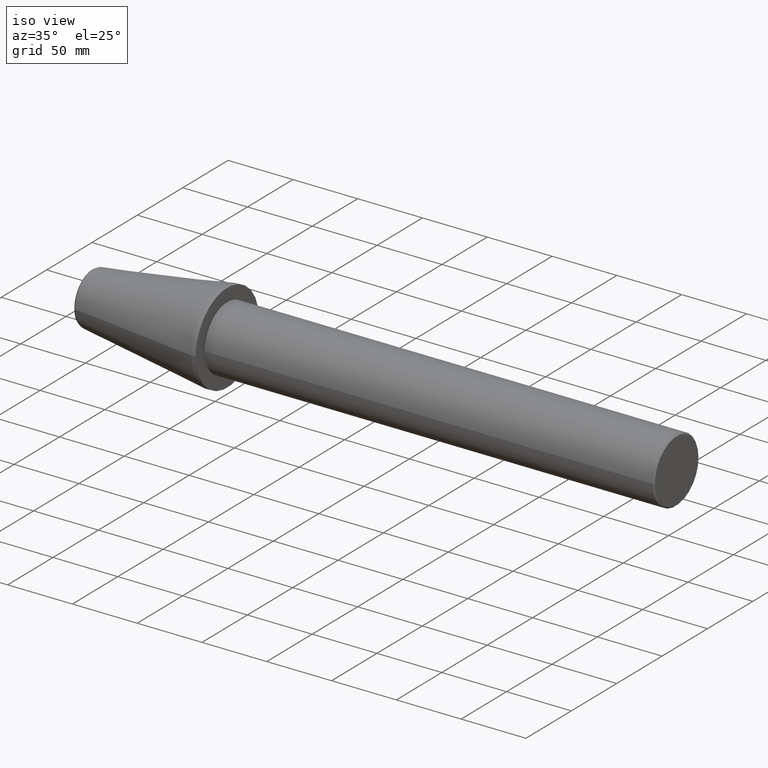
[diagram: clean part render]
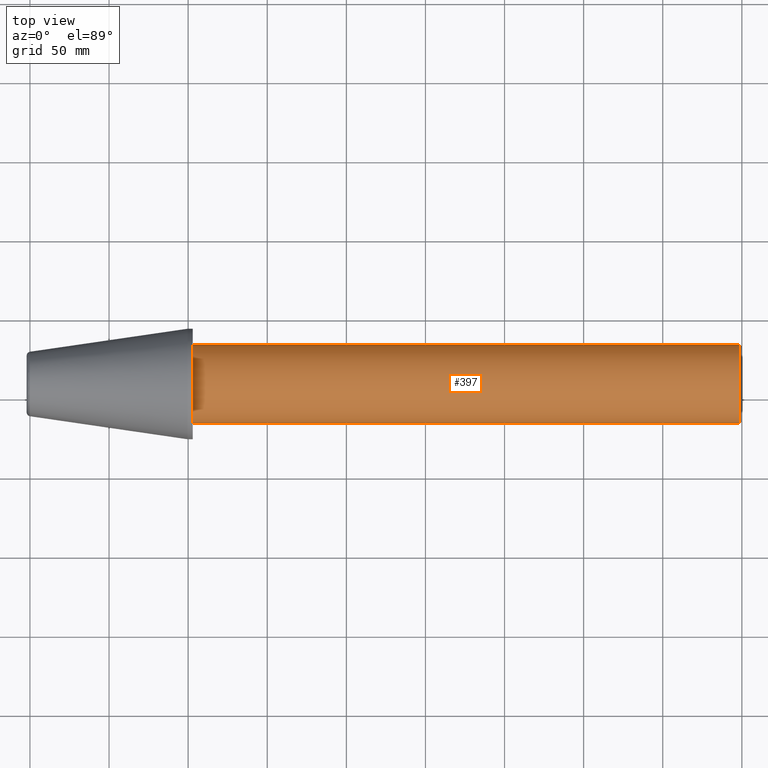
[diagram: tour spotlight — one face highlighted and labeled with its STEP entity id]
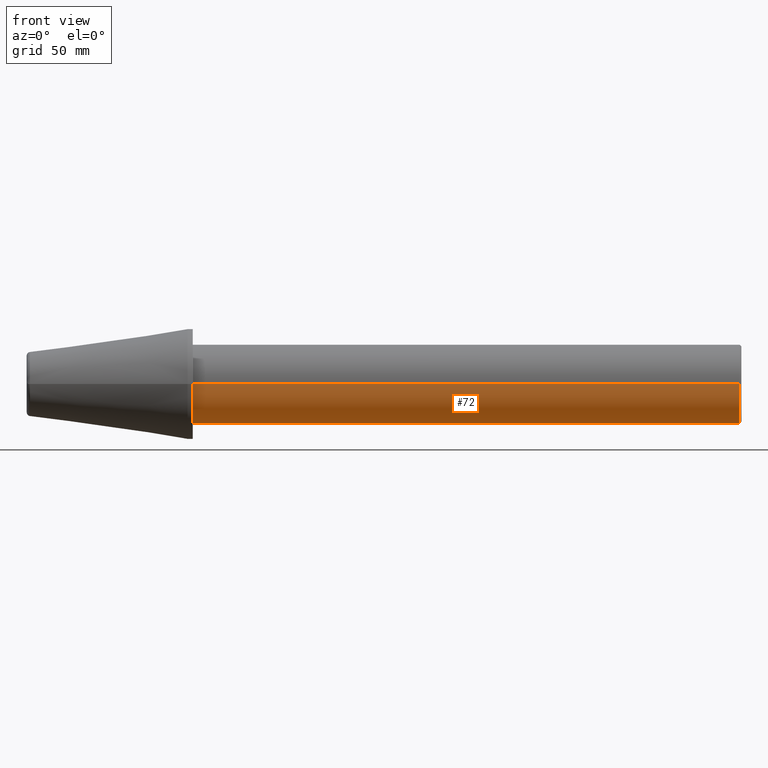
[diagram: tour spotlight — one face highlighted and labeled with its STEP entity id]
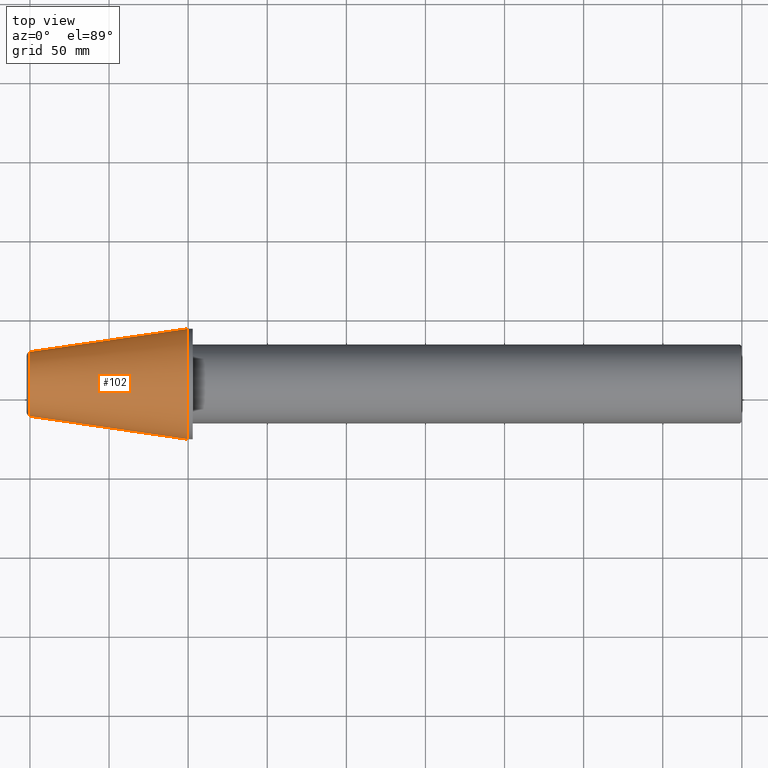
[diagram: tour spotlight — one face highlighted and labeled with its STEP entity id]
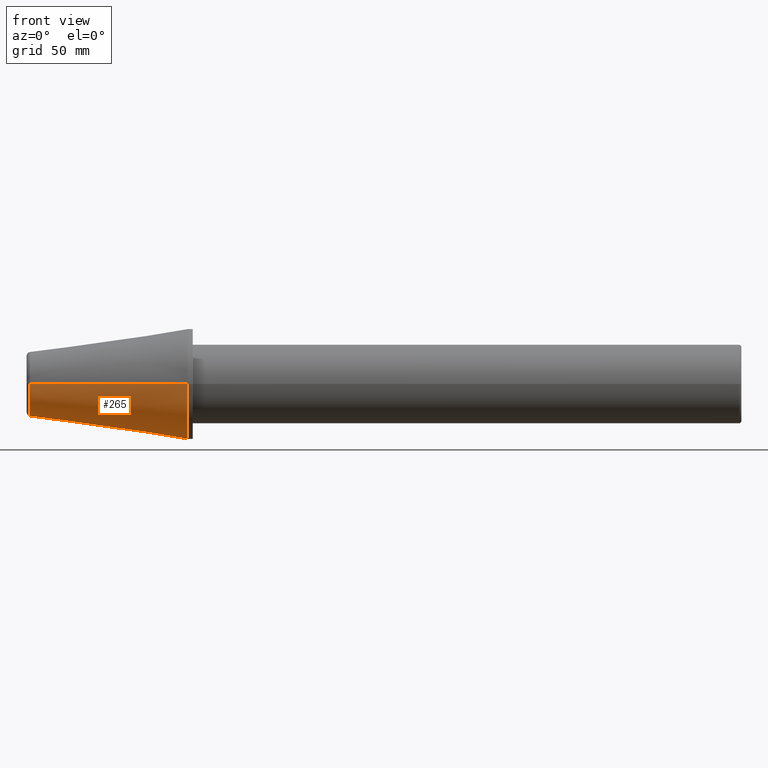
[diagram: tour spotlight — one face highlighted and labeled with its STEP entity id]
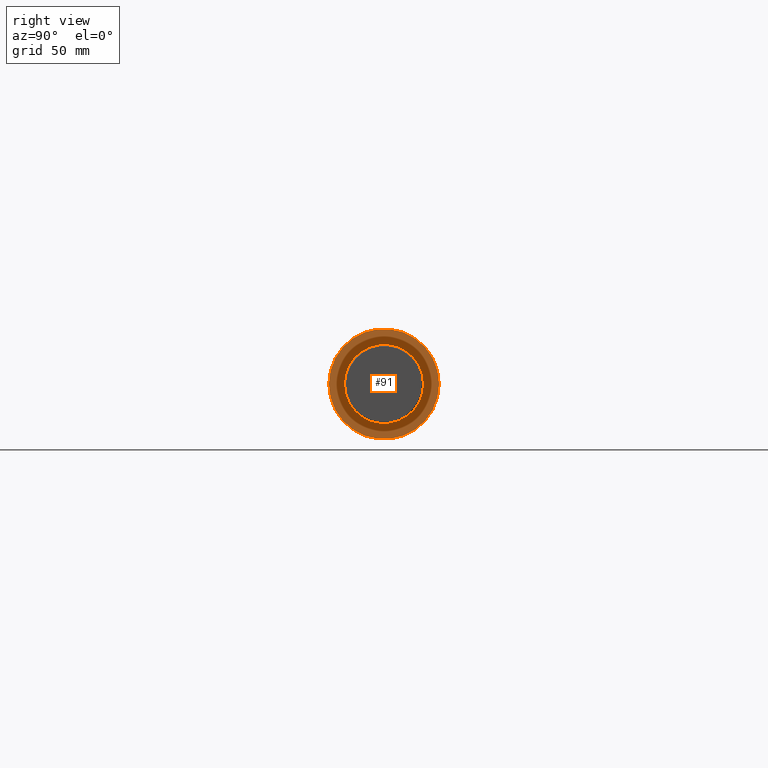
[diagram: tour spotlight — one face highlighted and labeled with its STEP entity id]
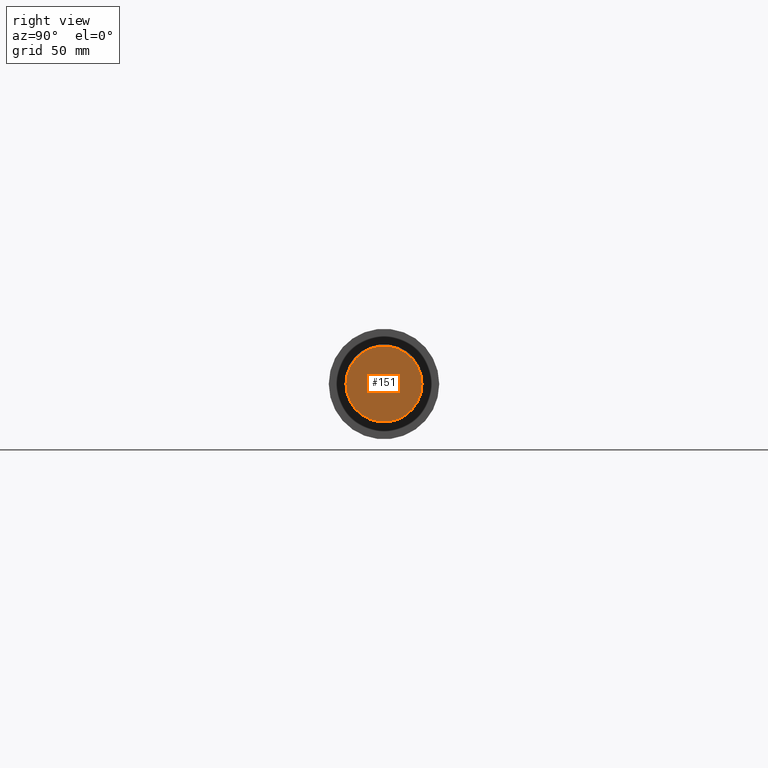
[diagram: tour spotlight — one face highlighted and labeled with its STEP entity id]
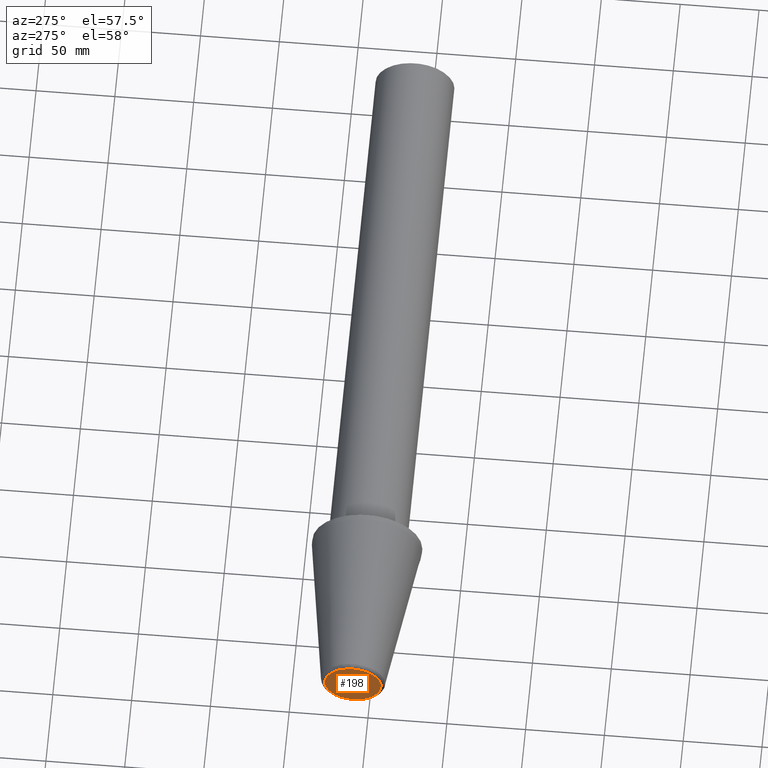
[diagram: tour spotlight — one face highlighted and labeled with its STEP entity id]
A machine part: a face-by-face anatomy tour. The part has 13 B-rep faces; the first image is the clean iso view, then the 7 largest visible faces are spotlighted one at a time (largest first), each with its STEP entity span.

Face 1 — top view, entity #397. In plain terms, the highlighted cylindrical surface (partial cylindrical patch) has radius 25 mm, axis along (-1, -0, -0).
Definition (entity closure, byte-faithful):
#26 = DIRECTION ( 'NONE',  ( 8.881784197001836100E-015, -1.000000000000000000, 0.0000000000000000000 ) ) ;
#27 = DIRECTION ( 'NONE',  ( 1.000000000000000000, 7.864335758274511400E-015, 0.0000000000000000000 ) ) ;
#28 = CARTESIAN_POINT ( 'NONE',  ( 1802.875038306884600, 1609.423944982286500, 0.0000000000000000000 ) ) ;
#36 = CIRCLE ( 'NONE', #68, 24.99999999999835900 ) ;
#37 = DIRECTION ( 'NONE',  ( 8.881784197001836100E-015, -1.000000000000000000, 0.0000000000000000000 ) ) ;
#47 = VERTEX_POINT ( 'NONE', #59 ) ;
#59 = CARTESIAN_POINT ( 'NONE',  ( 2148.675038306883800, 1584.423944982292600, 0.0000000000000000000 ) ) ;
#68 = AXIS2_PLACEMENT_3D ( 'NONE', #313, #342, #224 ) ;
#71 = CARTESIAN_POINT ( 'NONE',  ( 1802.875038306884300, 1634.423944982284900, 3.061616997868183100E-015 ) ) ;
#77 = DIRECTION ( 'NONE',  ( -1.000000000000000000, -7.864335758274511400E-015, -0.0000000000000000000 ) ) ;
#86 = EDGE_CURVE ( 'NONE', #272, #247, #400, .T. ) ;
#88 = VECTOR ( 'NONE', #183, 1000.000000000000000 ) ;
#101 = EDGE_CURVE ( 'NONE', #47, #149, #36, .T. ) ;
#108 = LINE ( 'NONE', #217, #186 ) ;
#116 = FACE_OUTER_BOUND ( 'NONE', #200, .T. ) ;
#117 = LINE ( 'NONE', #194, #88 ) ;
#121 = AXIS2_PLACEMENT_3D ( 'NONE', #286, #382, #37 ) ;
#123 = CYLINDRICAL_SURFACE ( 'NONE', #121, 24.99999999999835900 ) ;
#139 = ORIENTED_EDGE ( 'NONE', *, *, #270, .T. ) ;
#149 = VERTEX_POINT ( 'NONE', #258 ) ;
#173 = ORIENTED_EDGE ( 'NONE', *, *, #101, .T. ) ;
#183 = DIRECTION ( 'NONE',  ( -1.000000000000000000, -7.864335758274511400E-015, -0.0000000000000000000 ) ) ;
#186 = VECTOR ( 'NONE', #77, 1000.000000000000000 ) ;
#194 = CARTESIAN_POINT ( 'NONE',  ( 1697.925038306884300, 1634.423944982284000, 3.061616997868182300E-015 ) ) ;
#200 = EDGE_LOOP ( 'NONE', ( #173, #139, #244, #399 ) ) ;
#217 = CARTESIAN_POINT ( 'NONE',  ( 1697.925038306884700, 1584.423944982287100, 0.0000000000000000000 ) ) ;
#224 = DIRECTION ( 'NONE',  ( 0.0000000000000000000, -1.000000000000000000, 0.0000000000000000000 ) ) ;
#244 = ORIENTED_EDGE ( 'NONE', *, *, #86, .T. ) ;
#245 = AXIS2_PLACEMENT_3D ( 'NONE', #28, #27, #26 ) ;
#247 = VERTEX_POINT ( 'NONE', #343 ) ;
#258 = CARTESIAN_POINT ( 'NONE',  ( 2148.675038306883800, 1634.423944982285300, 3.061616997867906600E-015 ) ) ;
#270 = EDGE_CURVE ( 'NONE', #149, #272, #117, .T. ) ;
#272 = VERTEX_POINT ( 'NONE', #71 ) ;
#276 = EDGE_CURVE ( 'NONE', #47, #247, #108, .T. ) ;
#286 = CARTESIAN_POINT ( 'NONE',  ( 1697.925038306884500, 1609.423944982285500, 0.0000000000000000000 ) ) ;
#313 = CARTESIAN_POINT ( 'NONE',  ( 2148.675038306883800, 1609.423944982289200, 0.0000000000000000000 ) ) ;
#342 = DIRECTION ( 'NONE',  ( -1.000000000000000000, -7.864335758274511400E-015, -0.0000000000000000000 ) ) ;
#343 = CARTESIAN_POINT ( 'NONE',  ( 1802.875038306884800, 1584.423944982288000, 0.0000000000000000000 ) ) ;
#382 = DIRECTION ( 'NONE',  ( -1.000000000000000000, -7.864335758274511400E-015, -0.0000000000000000000 ) ) ;
#397 = ADVANCED_FACE ( 'NONE', ( #116 ), #123, .T. ) ;
#399 = ORIENTED_EDGE ( 'NONE', *, *, #276, .F. ) ;
#400 = CIRCLE ( 'NONE', #245, 24.99999999999835900 ) ;

Face 2 — front view, entity #72. In plain terms, the highlighted cylindrical surface (partial cylindrical patch) has radius 25 mm, axis along (-1, -0, -0).
Definition (entity closure, byte-faithful):
#47 = VERTEX_POINT ( 'NONE', #59 ) ;
#50 = CIRCLE ( 'NONE', #235, 24.99999999999835900 ) ;
#52 = DIRECTION ( 'NONE',  ( 8.881784197001836100E-015, -1.000000000000000000, 0.0000000000000000000 ) ) ;
#59 = CARTESIAN_POINT ( 'NONE',  ( 2148.675038306883800, 1584.423944982292600, 0.0000000000000000000 ) ) ;
#61 = CARTESIAN_POINT ( 'NONE',  ( 1697.925038306884500, 1609.423944982285500, 0.0000000000000000000 ) ) ;
#66 = DIRECTION ( 'NONE',  ( -1.000000000000000000, -7.864335758274511400E-015, -0.0000000000000000000 ) ) ;
#71 = CARTESIAN_POINT ( 'NONE',  ( 1802.875038306884300, 1634.423944982284900, 3.061616997868183100E-015 ) ) ;
#72 = ADVANCED_FACE ( 'NONE', ( #89 ), #395, .T. ) ;
#77 = DIRECTION ( 'NONE',  ( -1.000000000000000000, -7.864335758274511400E-015, -0.0000000000000000000 ) ) ;
#81 = ORIENTED_EDGE ( 'NONE', *, *, #290, .T. ) ;
#88 = VECTOR ( 'NONE', #183, 1000.000000000000000 ) ;
#89 = FACE_OUTER_BOUND ( 'NONE', #141, .T. ) ;
#108 = LINE ( 'NONE', #217, #186 ) ;
#117 = LINE ( 'NONE', #194, #88 ) ;
#130 = AXIS2_PLACEMENT_3D ( 'NONE', #378, #229, #339 ) ;
#141 = EDGE_LOOP ( 'NONE', ( #143, #81, #243, #280 ) ) ;
#143 = ORIENTED_EDGE ( 'NONE', *, *, #270, .F. ) ;
#149 = VERTEX_POINT ( 'NONE', #258 ) ;
#183 = DIRECTION ( 'NONE',  ( -1.000000000000000000, -7.864335758274511400E-015, -0.0000000000000000000 ) ) ;
#186 = VECTOR ( 'NONE', #77, 1000.000000000000000 ) ;
#194 = CARTESIAN_POINT ( 'NONE',  ( 1697.925038306884300, 1634.423944982284000, 3.061616997868182300E-015 ) ) ;
#217 = CARTESIAN_POINT ( 'NONE',  ( 1697.925038306884700, 1584.423944982287100, 0.0000000000000000000 ) ) ;
#229 = DIRECTION ( 'NONE',  ( 1.000000000000000000, 7.864335758274511400E-015, 0.0000000000000000000 ) ) ;
#235 = AXIS2_PLACEMENT_3D ( 'NONE', #344, #352, #362 ) ;
#239 = AXIS2_PLACEMENT_3D ( 'NONE', #61, #66, #52 ) ;
#243 = ORIENTED_EDGE ( 'NONE', *, *, #276, .T. ) ;
#247 = VERTEX_POINT ( 'NONE', #343 ) ;
#252 = CIRCLE ( 'NONE', #130, 24.99999999999835900 ) ;
#258 = CARTESIAN_POINT ( 'NONE',  ( 2148.675038306883800, 1634.423944982285300, 3.061616997867906600E-015 ) ) ;
#270 = EDGE_CURVE ( 'NONE', #149, #272, #117, .T. ) ;
#272 = VERTEX_POINT ( 'NONE', #71 ) ;
#276 = EDGE_CURVE ( 'NONE', #47, #247, #108, .T. ) ;
#280 = ORIENTED_EDGE ( 'NONE', *, *, #301, .T. ) ;
#290 = EDGE_CURVE ( 'NONE', #149, #47, #50, .T. ) ;
#301 = EDGE_CURVE ( 'NONE', #247, #272, #252, .T. ) ;
#339 = DIRECTION ( 'NONE',  ( 8.881784197001836100E-015, -1.000000000000000000, 0.0000000000000000000 ) ) ;
#343 = CARTESIAN_POINT ( 'NONE',  ( 1802.875038306884800, 1584.423944982288000, 0.0000000000000000000 ) ) ;
#344 = CARTESIAN_POINT ( 'NONE',  ( 2148.675038306883800, 1609.423944982289200, 0.0000000000000000000 ) ) ;
#352 = DIRECTION ( 'NONE',  ( -1.000000000000000000, -7.864335758274511400E-015, -0.0000000000000000000 ) ) ;
#362 = DIRECTION ( 'NONE',  ( 0.0000000000000000000, -1.000000000000000000, 0.0000000000000000000 ) ) ;
#378 = CARTESIAN_POINT ( 'NONE',  ( 1802.875038306884600, 1609.423944982286500, 0.0000000000000000000 ) ) ;
#395 = CYLINDRICAL_SURFACE ( 'NONE', #239, 24.99999999999835900 ) ;

Face 3 — top view, entity #102. In plain terms, the highlighted conical surface has half-angle 8.297 deg.
Definition (entity closure, byte-faithful):
#3 = DIRECTION ( 'NONE',  ( 1.000000000000000000, 6.357755330709176700E-015, 3.178877665354588400E-015 ) ) ;
#7 = ORIENTED_EDGE ( 'NONE', *, *, #90, .T. ) ;
#13 = AXIS2_PLACEMENT_3D ( 'NONE', #25, #3, #14 ) ;
#14 = DIRECTION ( 'NONE',  ( -6.357755330709217000E-015, 1.000000000000000000, 0.0000000000000000000 ) ) ;
#25 = CARTESIAN_POINT ( 'NONE',  ( 1799.675038306884500, 1609.423944982286700, -4.466826931958537700E-042 ) ) ;
#29 = CARTESIAN_POINT ( 'NONE',  ( 1799.675038306884700, 1574.498944982284900, 4.277078946022360400E-015 ) ) ;
#30 = DIRECTION ( 'NONE',  ( 1.000000000000000000, 7.864335758274511400E-015, 0.0000000000000000000 ) ) ;
#39 = DIRECTION ( 'NONE',  ( 0.9895327870518778600, -0.1443082234293763500, 3.163276336286633200E-015 ) ) ;
#49 = CARTESIAN_POINT ( 'NONE',  ( 1700.064267748310600, 1629.822237507979700, 0.0000000000000000000 ) ) ;
#79 = VECTOR ( 'NONE', #39, 1000.000000000000200 ) ;
#80 = AXIS2_PLACEMENT_3D ( 'NONE', #365, #30, #370 ) ;
#83 = VERTEX_POINT ( 'NONE', #49 ) ;
#90 = EDGE_CURVE ( 'NONE', #405, #329, #373, .T. ) ;
#102 = ADVANCED_FACE ( 'NONE', ( #160 ), #135, .T. ) ;
#105 = ORIENTED_EDGE ( 'NONE', *, *, #307, .F. ) ;
#119 = VERTEX_POINT ( 'NONE', #411 ) ;
#135 = CONICAL_SURFACE ( 'NONE', #13, 34.92500000000187300, 0.1448138426688974100 ) ;
#152 = ORIENTED_EDGE ( 'NONE', *, *, #296, .T. ) ;
#160 = FACE_OUTER_BOUND ( 'NONE', #168, .T. ) ;
#161 = AXIS2_PLACEMENT_3D ( 'NONE', #316, #318, #319 ) ;
#168 = EDGE_LOOP ( 'NONE', ( #152, #7, #241, #105 ) ) ;
#219 = CIRCLE ( 'NONE', #161, 34.92500000000209300 ) ;
#241 = ORIENTED_EDGE ( 'NONE', *, *, #284, .F. ) ;
#284 = EDGE_CURVE ( 'NONE', #119, #329, #219, .T. ) ;
#291 = DIRECTION ( 'NONE',  ( 0.9895327870518760800, 0.1443082234293889800, 3.145603675895289900E-015 ) ) ;
#293 = VECTOR ( 'NONE', #291, 1000.000000000000000 ) ;
#296 = EDGE_CURVE ( 'NONE', #83, #405, #308, .T. ) ;
#307 = EDGE_CURVE ( 'NONE', #83, #119, #429, .T. ) ;
#308 = CIRCLE ( 'NONE', #80, 20.39829252569380500 ) ;
#316 = CARTESIAN_POINT ( 'NONE',  ( 1799.675038306884500, 1609.423944982286500, 0.0000000000000000000 ) ) ;
#318 = DIRECTION ( 'NONE',  ( 1.000000000000000000, 7.864335758274511400E-015, 0.0000000000000000000 ) ) ;
#319 = DIRECTION ( 'NONE',  ( 6.357755330709176700E-015, -1.000000000000000000, 0.0000000000000000000 ) ) ;
#329 = VERTEX_POINT ( 'NONE', #371 ) ;
#365 = CARTESIAN_POINT ( 'NONE',  ( 1700.064267748310800, 1609.423944982285800, 0.0000000000000000000 ) ) ;
#370 = DIRECTION ( 'NONE',  ( -1.088545056628355800E-014, 1.000000000000000000, 0.0000000000000000000 ) ) ;
#371 = CARTESIAN_POINT ( 'NONE',  ( 1799.675038306884700, 1574.498944982284900, 4.277078946022527700E-015 ) ) ;
#373 = LINE ( 'NONE', #29, #79 ) ;
#375 = CARTESIAN_POINT ( 'NONE',  ( 1799.675038306884300, 1644.348944982288500, -4.466826931958537700E-042 ) ) ;
#404 = CARTESIAN_POINT ( 'NONE',  ( 1700.064267748311100, 1589.025652456592100, -1.549376522232125600E-013 ) ) ;
#405 = VERTEX_POINT ( 'NONE', #404 ) ;
#411 = CARTESIAN_POINT ( 'NONE',  ( 1799.675038306884300, 1644.348944982288500, -1.672640279132691700E-028 ) ) ;
#429 = LINE ( 'NONE', #375, #293 ) ;

Face 4 — front view, entity #265. In plain terms, the highlighted conical surface has half-angle 8.297 deg.
Definition (entity closure, byte-faithful):
#4 = DIRECTION ( 'NONE',  ( 6.357755330709176700E-015, -1.000000000000000000, 0.0000000000000000000 ) ) ;
#8 = DIRECTION ( 'NONE',  ( 1.000000000000000000, 7.864335758274511400E-015, 0.0000000000000000000 ) ) ;
#11 = CARTESIAN_POINT ( 'NONE',  ( 1799.675038306884500, 1609.423944982286500, 0.0000000000000000000 ) ) ;
#15 = DIRECTION ( 'NONE',  ( -1.088545056628355800E-014, 1.000000000000000000, 0.0000000000000000000 ) ) ;
#29 = CARTESIAN_POINT ( 'NONE',  ( 1799.675038306884700, 1574.498944982284900, 4.277078946022360400E-015 ) ) ;
#39 = DIRECTION ( 'NONE',  ( 0.9895327870518778600, -0.1443082234293763500, 3.163276336286633200E-015 ) ) ;
#49 = CARTESIAN_POINT ( 'NONE',  ( 1700.064267748310600, 1629.822237507979700, 0.0000000000000000000 ) ) ;
#79 = VECTOR ( 'NONE', #39, 1000.000000000000200 ) ;
#83 = VERTEX_POINT ( 'NONE', #49 ) ;
#90 = EDGE_CURVE ( 'NONE', #405, #329, #373, .T. ) ;
#97 = EDGE_CURVE ( 'NONE', #329, #119, #109, .T. ) ;
#109 = CIRCLE ( 'NONE', #228, 34.92500000000209300 ) ;
#112 = EDGE_CURVE ( 'NONE', #405, #83, #221, .T. ) ;
#119 = VERTEX_POINT ( 'NONE', #411 ) ;
#126 = DIRECTION ( 'NONE',  ( 1.000000000000000000, 7.864335758274511400E-015, 0.0000000000000000000 ) ) ;
#129 = EDGE_LOOP ( 'NONE', ( #341, #322, #426, #312 ) ) ;
#171 = AXIS2_PLACEMENT_3D ( 'NONE', #347, #188, #189 ) ;
#175 = FACE_OUTER_BOUND ( 'NONE', #129, .T. ) ;
#188 = DIRECTION ( 'NONE',  ( 1.000000000000000000, 6.357755330709176700E-015, 3.178877665354588400E-015 ) ) ;
#189 = DIRECTION ( 'NONE',  ( -6.357755330709217000E-015, 1.000000000000000000, 0.0000000000000000000 ) ) ;
#193 = CARTESIAN_POINT ( 'NONE',  ( 1700.064267748310800, 1609.423944982285800, 0.0000000000000000000 ) ) ;
#221 = CIRCLE ( 'NONE', #345, 20.39829252569380500 ) ;
#228 = AXIS2_PLACEMENT_3D ( 'NONE', #11, #8, #4 ) ;
#262 = CONICAL_SURFACE ( 'NONE', #171, 34.92500000000187300, 0.1448138426688974100 ) ;
#265 = ADVANCED_FACE ( 'NONE', ( #175 ), #262, .T. ) ;
#291 = DIRECTION ( 'NONE',  ( 0.9895327870518760800, 0.1443082234293889800, 3.145603675895289900E-015 ) ) ;
#293 = VECTOR ( 'NONE', #291, 1000.000000000000000 ) ;
#307 = EDGE_CURVE ( 'NONE', #83, #119, #429, .T. ) ;
#312 = ORIENTED_EDGE ( 'NONE', *, *, #97, .F. ) ;
#322 = ORIENTED_EDGE ( 'NONE', *, *, #112, .T. ) ;
#329 = VERTEX_POINT ( 'NONE', #371 ) ;
#341 = ORIENTED_EDGE ( 'NONE', *, *, #90, .F. ) ;
#345 = AXIS2_PLACEMENT_3D ( 'NONE', #193, #126, #15 ) ;
#347 = CARTESIAN_POINT ( 'NONE',  ( 1799.675038306884500, 1609.423944982286700, -4.466826931958537700E-042 ) ) ;
#371 = CARTESIAN_POINT ( 'NONE',  ( 1799.675038306884700, 1574.498944982284900, 4.277078946022527700E-015 ) ) ;
#373 = LINE ( 'NONE', #29, #79 ) ;
#375 = CARTESIAN_POINT ( 'NONE',  ( 1799.675038306884300, 1644.348944982288500, -4.466826931958537700E-042 ) ) ;
#404 = CARTESIAN_POINT ( 'NONE',  ( 1700.064267748311100, 1589.025652456592100, -1.549376522232125600E-013 ) ) ;
#405 = VERTEX_POINT ( 'NONE', #404 ) ;
#411 = CARTESIAN_POINT ( 'NONE',  ( 1799.675038306884300, 1644.348944982288500, -1.672640279132691700E-028 ) ) ;
#426 = ORIENTED_EDGE ( 'NONE', *, *, #307, .T. ) ;
#429 = LINE ( 'NONE', #375, #293 ) ;

Face 5 — right view, entity #91. In plain terms, the highlighted planar face has unit normal (-1, -0, 0).
Definition (entity closure, byte-faithful):
#9 = FACE_OUTER_BOUND ( 'NONE', #147, .T. ) ;
#19 = DIRECTION ( 'NONE',  ( 7.864335758274511400E-015, -1.000000000000000000, 0.0000000000000000000 ) ) ;
#20 = DIRECTION ( 'NONE',  ( -1.000000000000000000, -7.864335758274511400E-015, 0.0000000000000000000 ) ) ;
#21 = PLANE ( 'NONE',  #223 ) ;
#23 = CIRCLE ( 'NONE', #260, 34.92500000000209300 ) ;
#24 = EDGE_CURVE ( 'NONE', #114, #201, #23, .T. ) ;
#26 = DIRECTION ( 'NONE',  ( 8.881784197001836100E-015, -1.000000000000000000, 0.0000000000000000000 ) ) ;
#27 = DIRECTION ( 'NONE',  ( 1.000000000000000000, 7.864335758274511400E-015, 0.0000000000000000000 ) ) ;
#28 = CARTESIAN_POINT ( 'NONE',  ( 1802.875038306884600, 1609.423944982286500, 0.0000000000000000000 ) ) ;
#31 = DIRECTION ( 'NONE',  ( -1.000000000000000000, -7.864335758274511400E-015, -0.0000000000000000000 ) ) ;
#33 = CARTESIAN_POINT ( 'NONE',  ( 1802.875038306884100, 1644.348944982288500, 0.0000000000000000000 ) ) ;
#64 = CARTESIAN_POINT ( 'NONE',  ( 1802.875038306884600, 1574.498944982284500, 0.0000000000000000000 ) ) ;
#71 = CARTESIAN_POINT ( 'NONE',  ( 1802.875038306884300, 1634.423944982284900, 3.061616997868183100E-015 ) ) ;
#74 = DIRECTION ( 'NONE',  ( 6.357755330709176700E-015, -1.000000000000000000, 0.0000000000000000000 ) ) ;
#86 = EDGE_CURVE ( 'NONE', #272, #247, #400, .T. ) ;
#91 = ADVANCED_FACE ( 'NONE', ( #99, #9 ), #21, .F. ) ;
#93 = ORIENTED_EDGE ( 'NONE', *, *, #86, .F. ) ;
#99 = FACE_BOUND ( 'NONE', #421, .T. ) ;
#114 = VERTEX_POINT ( 'NONE', #64 ) ;
#122 = CARTESIAN_POINT ( 'NONE',  ( 1802.875038306884300, 1609.423944982286500, 0.0000000000000000000 ) ) ;
#130 = AXIS2_PLACEMENT_3D ( 'NONE', #378, #229, #339 ) ;
#144 = ORIENTED_EDGE ( 'NONE', *, *, #301, .F. ) ;
#147 = EDGE_LOOP ( 'NONE', ( #182, #267 ) ) ;
#172 = CIRCLE ( 'NONE', #212, 34.92500000000209300 ) ;
#182 = ORIENTED_EDGE ( 'NONE', *, *, #24, .F. ) ;
#201 = VERTEX_POINT ( 'NONE', #277 ) ;
#212 = AXIS2_PLACEMENT_3D ( 'NONE', #327, #331, #332 ) ;
#223 = AXIS2_PLACEMENT_3D ( 'NONE', #33, #20, #19 ) ;
#229 = DIRECTION ( 'NONE',  ( 1.000000000000000000, 7.864335758274511400E-015, 0.0000000000000000000 ) ) ;
#245 = AXIS2_PLACEMENT_3D ( 'NONE', #28, #27, #26 ) ;
#247 = VERTEX_POINT ( 'NONE', #343 ) ;
#252 = CIRCLE ( 'NONE', #130, 24.99999999999835900 ) ;
#260 = AXIS2_PLACEMENT_3D ( 'NONE', #122, #31, #74 ) ;
#267 = ORIENTED_EDGE ( 'NONE', *, *, #287, .F. ) ;
#272 = VERTEX_POINT ( 'NONE', #71 ) ;
#277 = CARTESIAN_POINT ( 'NONE',  ( 1802.875038306884100, 1644.348944982288500, 4.277078946022387300E-015 ) ) ;
#287 = EDGE_CURVE ( 'NONE', #201, #114, #172, .T. ) ;
#301 = EDGE_CURVE ( 'NONE', #247, #272, #252, .T. ) ;
#327 = CARTESIAN_POINT ( 'NONE',  ( 1802.875038306884300, 1609.423944982286500, 0.0000000000000000000 ) ) ;
#331 = DIRECTION ( 'NONE',  ( -1.000000000000000000, -7.864335758274511400E-015, -0.0000000000000000000 ) ) ;
#332 = DIRECTION ( 'NONE',  ( 6.357755330709176700E-015, -1.000000000000000000, 0.0000000000000000000 ) ) ;
#339 = DIRECTION ( 'NONE',  ( 8.881784197001836100E-015, -1.000000000000000000, 0.0000000000000000000 ) ) ;
#343 = CARTESIAN_POINT ( 'NONE',  ( 1802.875038306884800, 1584.423944982288000, 0.0000000000000000000 ) ) ;
#378 = CARTESIAN_POINT ( 'NONE',  ( 1802.875038306884600, 1609.423944982286500, 0.0000000000000000000 ) ) ;
#400 = CIRCLE ( 'NONE', #245, 24.99999999999835900 ) ;
#421 = EDGE_LOOP ( 'NONE', ( #144, #93 ) ) ;

Face 6 — right view, entity #151. In plain terms, the highlighted planar face has unit normal (-1, -0, 0).
Definition (entity closure, byte-faithful):
#2 = ORIENTED_EDGE ( 'NONE', *, *, #336, .F. ) ;
#60 = AXIS2_PLACEMENT_3D ( 'NONE', #340, #346, #266 ) ;
#100 = DIRECTION ( 'NONE',  ( 1.850371707708883500E-014, -1.000000000000000000, 0.0000000000000000000 ) ) ;
#115 = EDGE_CURVE ( 'NONE', #372, #325, #380, .T. ) ;
#151 = ADVANCED_FACE ( 'NONE', ( #415 ), #215, .F. ) ;
#177 = AXIS2_PLACEMENT_3D ( 'NONE', #401, #256, #225 ) ;
#185 = CIRCLE ( 'NONE', #60, 23.99999999999624800 ) ;
#208 = AXIS2_PLACEMENT_3D ( 'NONE', #264, #314, #100 ) ;
#214 = EDGE_LOOP ( 'NONE', ( #2, #294 ) ) ;
#215 = PLANE ( 'NONE',  #177 ) ;
#225 = DIRECTION ( 'NONE',  ( 7.864335758274511400E-015, -1.000000000000000000, 0.0000000000000000000 ) ) ;
#256 = DIRECTION ( 'NONE',  ( -1.000000000000000000, -7.864335758274511400E-015, 0.0000000000000000000 ) ) ;
#264 = CARTESIAN_POINT ( 'NONE',  ( 2149.675038306884300, 1609.423944982289200, 0.0000000000000000000 ) ) ;
#266 = DIRECTION ( 'NONE',  ( 1.850371707708883500E-014, -1.000000000000000000, 0.0000000000000000000 ) ) ;
#281 = CARTESIAN_POINT ( 'NONE',  ( 2149.675038306883800, 1633.423944982285300, 3.000384657910535800E-015 ) ) ;
#294 = ORIENTED_EDGE ( 'NONE', *, *, #115, .F. ) ;
#314 = DIRECTION ( 'NONE',  ( -1.000000000000000000, -1.776356839400485500E-014, 0.0000000000000000000 ) ) ;
#325 = VERTEX_POINT ( 'NONE', #367 ) ;
#336 = EDGE_CURVE ( 'NONE', #325, #372, #185, .T. ) ;
#340 = CARTESIAN_POINT ( 'NONE',  ( 2149.675038306884300, 1609.423944982289200, 0.0000000000000000000 ) ) ;
#346 = DIRECTION ( 'NONE',  ( -1.000000000000000000, -1.776356839400485500E-014, 0.0000000000000000000 ) ) ;
#367 = CARTESIAN_POINT ( 'NONE',  ( 2149.675038306884700, 1585.423944982292800, 0.0000000000000000000 ) ) ;
#372 = VERTEX_POINT ( 'NONE', #281 ) ;
#380 = CIRCLE ( 'NONE', #208, 23.99999999999624800 ) ;
#401 = CARTESIAN_POINT ( 'NONE',  ( 2149.675038306883400, 1633.423944982286000, 0.0000000000000000000 ) ) ;
#415 = FACE_OUTER_BOUND ( 'NONE', #214, .T. ) ;

Face 7 — auxiliary view, entity #198. In plain terms, the highlighted planar face has unit normal (1, 0, -0).
Definition (entity closure, byte-faithful):
#35 = VERTEX_POINT ( 'NONE', #75 ) ;
#57 = ORIENTED_EDGE ( 'NONE', *, *, #145, .F. ) ;
#65 = AXIS2_PLACEMENT_3D ( 'NONE', #427, #162, #190 ) ;
#75 = CARTESIAN_POINT ( 'NONE',  ( 1697.925038306885000, 1591.499484424221700, 0.0000000000000000000 ) ) ;
#92 = CARTESIAN_POINT ( 'NONE',  ( 1697.925038306884500, 1627.348405540349900, 2.255704732903340900E-015 ) ) ;
#145 = EDGE_CURVE ( 'NONE', #271, #35, #269, .T. ) ;
#154 = PLANE ( 'NONE',  #65 ) ;
#162 = DIRECTION ( 'NONE',  ( 1.000000000000000000, 7.864335758274511400E-015, -0.0000000000000000000 ) ) ;
#170 = CARTESIAN_POINT ( 'NONE',  ( 1697.925038306885000, 1591.499484424221700, -35.84892111612791200 ) ) ;
#176 = CARTESIAN_POINT ( 'NONE',  ( 1697.925038306884500, 1627.348405540349900, 2.255704732903340900E-015 ) ) ;
#190 = DIRECTION ( 'NONE',  ( -7.864335758274511400E-015, 1.000000000000000000, 0.0000000000000000000 ) ) ;
#195 = CARTESIAN_POINT ( 'NONE',  ( 1697.925038306885000, 1591.499484424221700, 0.0000000000000000000 ) ) ;
#198 = ADVANCED_FACE ( 'NONE', ( #328 ), #154, .F. ) ;
#209 = CARTESIAN_POINT ( 'NONE',  ( 1697.925038306884500, 1627.348405540349900, 2.255704732903340900E-015 ) ) ;
#213 = CARTESIAN_POINT ( 'NONE',  ( 1697.925038306884300, 1627.348405540349600, -35.84892111612791200 ) ) ;
#238 = EDGE_CURVE ( 'NONE', #35, #271, #311, .T. ) ;
#261 = ORIENTED_EDGE ( 'NONE', *, *, #238, .F. ) ;
#269 =( BOUNDED_CURVE ( )  B_SPLINE_CURVE ( 3, ( #92, #357, #368, #195 ),
 .UNSPECIFIED., .F., .F. ) 
 B_SPLINE_CURVE_WITH_KNOTS ( ( 4, 4 ),
 ( 0.0000000000000000000, 1.000000000000000000 ),
 .UNSPECIFIED. ) 
 CURVE ( )  GEOMETRIC_REPRESENTATION_ITEM ( )  RATIONAL_B_SPLINE_CURVE ( ( 1.000000000000000000, 0.3333333333333333700, 0.3333333333333333700, 1.000000000000000000 ) ) 
 REPRESENTATION_ITEM ( '' )  );
#271 = VERTEX_POINT ( 'NONE', #209 ) ;
#288 = CARTESIAN_POINT ( 'NONE',  ( 1697.925038306885000, 1591.499484424221700, 0.0000000000000000000 ) ) ;
#311 =( BOUNDED_CURVE ( )  B_SPLINE_CURVE ( 3, ( #288, #170, #213, #176 ),
 .UNSPECIFIED., .F., .F. ) 
 B_SPLINE_CURVE_WITH_KNOTS ( ( 4, 4 ),
 ( 0.0000000000000000000, 1.000000000000000000 ),
 .UNSPECIFIED. ) 
 CURVE ( )  GEOMETRIC_REPRESENTATION_ITEM ( )  RATIONAL_B_SPLINE_CURVE ( ( 1.000000000000000000, 0.3333333333333333700, 0.3333333333333333700, 1.000000000000000000 ) ) 
 REPRESENTATION_ITEM ( '' )  );
#328 = FACE_OUTER_BOUND ( 'NONE', #413, .T. ) ;
#357 = CARTESIAN_POINT ( 'NONE',  ( 1697.925038306884300, 1627.348405540349900, 35.84892111612835900 ) ) ;
#368 = CARTESIAN_POINT ( 'NONE',  ( 1697.925038306885000, 1591.499484424221500, 35.84892111612835900 ) ) ;
#413 = EDGE_LOOP ( 'NONE', ( #261, #57 ) ) ;
#427 = CARTESIAN_POINT ( 'NONE',  ( 1697.925038306884500, 1627.348405540349900, 0.0000000000000000000 ) ) ;